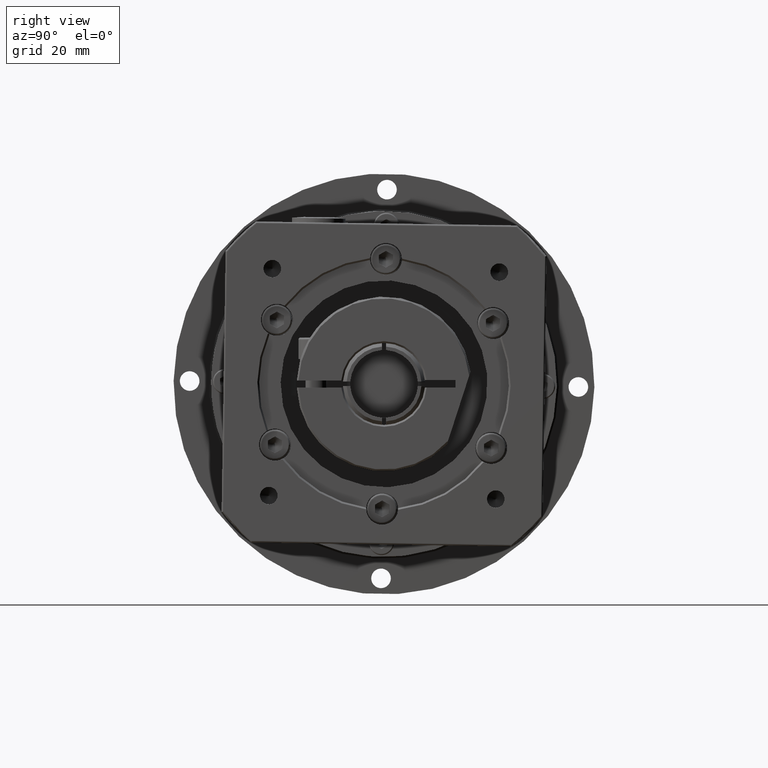
[diagram: clean part render]
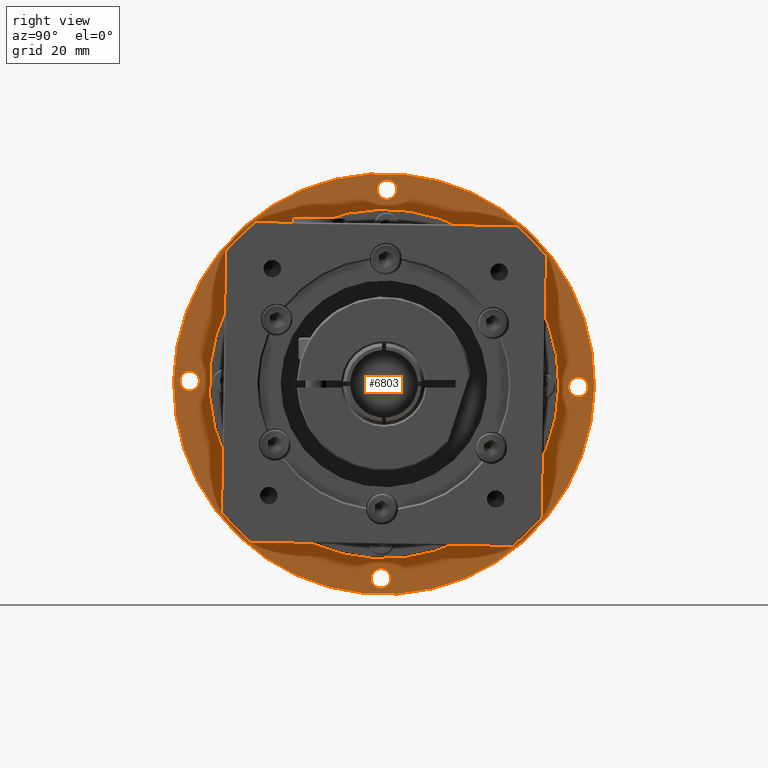
[diagram: same view with one face highlighted and labeled with its STEP entity id]
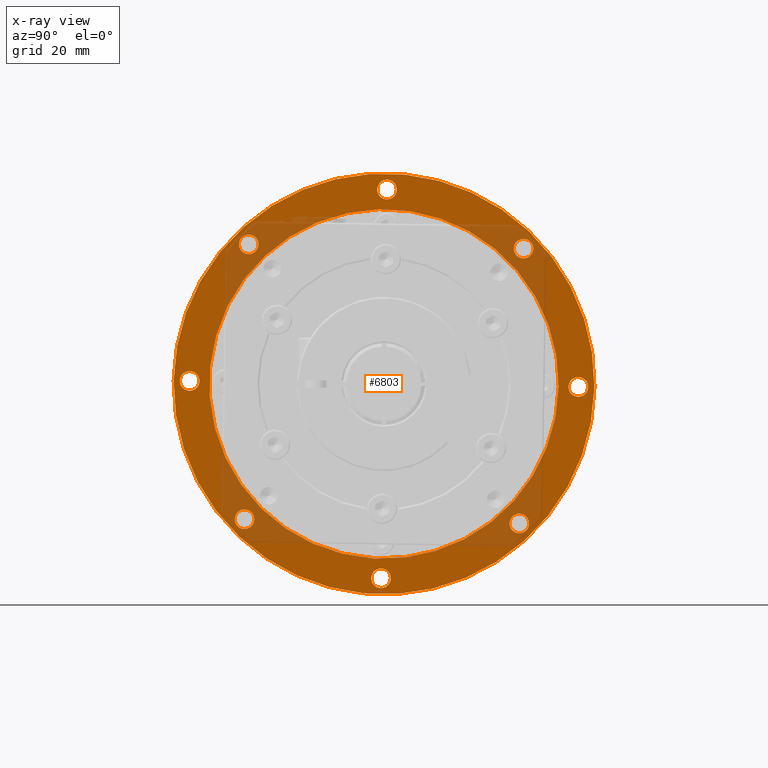
[diagram: x-ray of the same camera — body ghosted, the highlighted face saturated]
A machine part, right view. The second image highlights one B-rep face of the part: STEP entity #6803.
The next image is the same camera in x-ray: the body ghosted, the highlighted face saturated — about 24% of this face is hidden behind the body in this view.
In plain terms, the highlighted planar face has unit normal (1, 0, -0).
Its self-contained STEP definition (entity closure, byte-faithful):
#1019=PLANE('',#7541);
#1238=FACE_BOUND('',#2273,.T.);
#1239=FACE_BOUND('',#2274,.T.);
#1240=FACE_BOUND('',#2275,.T.);
#1241=FACE_BOUND('',#2276,.T.);
#1242=FACE_BOUND('',#2277,.T.);
#1243=FACE_BOUND('',#2278,.T.);
#1244=FACE_BOUND('',#2279,.T.);
#1245=FACE_BOUND('',#2280,.T.);
#1246=FACE_BOUND('',#2281,.T.);
#1665=FACE_OUTER_BOUND('',#2272,.T.);
#2272=EDGE_LOOP('',(#5486));
#2273=EDGE_LOOP('',(#5487));
#2274=EDGE_LOOP('',(#5488));
#2275=EDGE_LOOP('',(#5489));
#2276=EDGE_LOOP('',(#5490));
#2277=EDGE_LOOP('',(#5491));
#2278=EDGE_LOOP('',(#5492));
#2279=EDGE_LOOP('',(#5493));
#2280=EDGE_LOOP('',(#5494));
#2281=EDGE_LOOP('',(#5495));
#2850=CIRCLE('',#7540,49.);
#2851=CIRCLE('',#7542,59.);
#2852=CIRCLE('',#7543,2.75);
#2853=CIRCLE('',#7544,2.75);
#2854=CIRCLE('',#7545,2.75);
#2855=CIRCLE('',#7546,2.75);
#2856=CIRCLE('',#7547,2.75);
#2857=CIRCLE('',#7548,2.75);
#2858=CIRCLE('',#7549,2.75);
#2859=CIRCLE('',#7550,2.75);
#3388=VERTEX_POINT('',#11584);
#3389=VERTEX_POINT('',#11587);
#3390=VERTEX_POINT('',#11589);
#3391=VERTEX_POINT('',#11591);
#3392=VERTEX_POINT('',#11593);
#3393=VERTEX_POINT('',#11595);
#3394=VERTEX_POINT('',#11597);
#3395=VERTEX_POINT('',#11599);
#3396=VERTEX_POINT('',#11601);
#3397=VERTEX_POINT('',#11603);
#4151=EDGE_CURVE('',#3388,#3388,#2850,.T.);
#4152=EDGE_CURVE('',#3389,#3389,#2851,.T.);
#4153=EDGE_CURVE('',#3390,#3390,#2852,.T.);
#4154=EDGE_CURVE('',#3391,#3391,#2853,.T.);
#4155=EDGE_CURVE('',#3392,#3392,#2854,.T.);
#4156=EDGE_CURVE('',#3393,#3393,#2855,.T.);
#4157=EDGE_CURVE('',#3394,#3394,#2856,.T.);
#4158=EDGE_CURVE('',#3395,#3395,#2857,.T.);
#4159=EDGE_CURVE('',#3396,#3396,#2858,.T.);
#4160=EDGE_CURVE('',#3397,#3397,#2859,.T.);
#5486=ORIENTED_EDGE('',*,*,#4152,.T.);
#5487=ORIENTED_EDGE('',*,*,#4153,.T.);
#5488=ORIENTED_EDGE('',*,*,#4154,.T.);
#5489=ORIENTED_EDGE('',*,*,#4155,.T.);
#5490=ORIENTED_EDGE('',*,*,#4156,.T.);
#5491=ORIENTED_EDGE('',*,*,#4157,.T.);
#5492=ORIENTED_EDGE('',*,*,#4158,.T.);
#5493=ORIENTED_EDGE('',*,*,#4159,.T.);
#5494=ORIENTED_EDGE('',*,*,#4160,.T.);
#5495=ORIENTED_EDGE('',*,*,#4151,.F.);
#6803=ADVANCED_FACE('',(#1665,#1238,#1239,#1240,#1241,#1242,#1243,#1244,
#1245,#1246),#1019,.T.);
#7540=AXIS2_PLACEMENT_3D('',#11585,#9100,#9101);
#7541=AXIS2_PLACEMENT_3D('',#11586,#9102,#9103);
#7542=AXIS2_PLACEMENT_3D('',#11588,#9104,#9105);
#7543=AXIS2_PLACEMENT_3D('',#11590,#9106,#9107);
#7544=AXIS2_PLACEMENT_3D('',#11592,#9108,#9109);
#7545=AXIS2_PLACEMENT_3D('',#11594,#9110,#9111);
#7546=AXIS2_PLACEMENT_3D('',#11596,#9112,#9113);
#7547=AXIS2_PLACEMENT_3D('',#11598,#9114,#9115);
#7548=AXIS2_PLACEMENT_3D('',#11600,#9116,#9117);
#7549=AXIS2_PLACEMENT_3D('',#11602,#9118,#9119);
#7550=AXIS2_PLACEMENT_3D('',#11604,#9120,#9121);
#9100=DIRECTION('center_axis',(1.,5.0633159996887E-15,-5.29528915366341E-15));
#9101=DIRECTION('ref_axis',(-5.21713403870543E-15,-0.0153129377686141,-0.999882750094677));
#9102=DIRECTION('center_axis',(1.,5.0633159996887E-15,-5.29528915366341E-15));
#9103=DIRECTION('ref_axis',(-5.19584375524573E-15,-0.0153129377686142,-0.999882750094677));
#9104=DIRECTION('center_axis',(1.,5.0633159996887E-15,-5.29528915366341E-15));
#9105=DIRECTION('ref_axis',(-5.21713403870543E-15,-0.0153129377686141,-0.999882750094677));
#9106=DIRECTION('center_axis',(-1.,-5.0633159996887E-15,5.29528915366341E-15));
#9107=DIRECTION('ref_axis',(-2.50437571534531E-16,-0.717851755119475,-0.696195990847325));
#9108=DIRECTION('center_axis',(-1.,-5.0633159996887E-15,5.29528915366341E-15));
#9109=DIRECTION('ref_axis',(4.86296182851351E-15,-0.999882750094677,0.0153129377686143));
#9110=DIRECTION('center_axis',(-1.,-5.0633159996887E-15,5.29528915366341E-15));
#9111=DIRECTION('ref_axis',(7.127704142721E-15,-0.696195990847325,0.717851755119475));
#9112=DIRECTION('center_axis',(-1.,-5.0633159996887E-15,5.29528915366341E-15));
#9113=DIRECTION('ref_axis',(5.21713403870543E-15,0.0153129377686143,0.999882750094677));
#9114=DIRECTION('center_axis',(-1.,-5.0633159996887E-15,5.29528915366341E-15));
#9115=DIRECTION('ref_axis',(2.50437571534532E-16,0.717851755119475,0.696195990847326));
#9116=DIRECTION('center_axis',(-1.,-5.0633159996887E-15,5.29528915366341E-15));
#9117=DIRECTION('ref_axis',(-4.86296182851351E-15,0.999882750094677,-0.0153129377686141));
#9118=DIRECTION('center_axis',(-1.,-5.0633159996887E-15,5.29528915366341E-15));
#9119=DIRECTION('ref_axis',(-7.127704142721E-15,0.696195990847326,-0.717851755119475));
#9120=DIRECTION('center_axis',(-1.,-5.0633159996887E-15,5.29528915366341E-15));
#9121=DIRECTION('ref_axis',(-5.21713403870543E-15,-0.0153129377686141,-0.999882750094677));
#11584=CARTESIAN_POINT('',(3.28023839840119,-46.0777938031173,-12.1839198305402));
#11585=CARTESIAN_POINT('Origin',(3.28023839840144,-95.0720485577565,-11.4335858798782));
#11586=CARTESIAN_POINT('Origin',(3.28023839840119,-46.0777938031173,-12.1839198305402));
#11587=CARTESIAN_POINT('',(3.28023839840113,-36.0789663021705,-12.3370492082264));
#11588=CARTESIAN_POINT('Origin',(3.28023839840144,-95.0720485577565,-11.4335858798782));
#11589=CARTESIAN_POINT('',(3.28023839840104,-59.1034593831558,-52.4710455087197));
#11590=CARTESIAN_POINT('Origin',(3.28023839840104,-57.1293670565772,-50.5565065338895));
#11591=CARTESIAN_POINT('',(3.28023839840116,-98.6562812289063,-65.8850851811744));
#11592=CARTESIAN_POINT('Origin',(3.28023839840113,-95.9066036661459,-65.927195760038));
#11593=CARTESIAN_POINT('',(3.28023839840143,-136.109508186598,-47.4021750544788));
#11594=CARTESIAN_POINT('Origin',(3.28023839840139,-134.194969211768,-49.3762673810574));
#11595=CARTESIAN_POINT('',(3.28023839840171,-149.523547859053,-7.84935320872831));
#11596=CARTESIAN_POINT('Origin',(3.28023839840166,-149.565658437916,-10.5990307714887));
#11597=CARTESIAN_POINT('',(3.28023839840182,-131.040637732357,29.6038737489634));
#11598=CARTESIAN_POINT('Origin',(3.28023839840179,-133.014730058936,27.6893347741332));
#11599=CARTESIAN_POINT('',(3.2802383984017,-91.4878158866066,43.0179134214181));
#11600=CARTESIAN_POINT('Origin',(3.2802383984017,-94.237493449367,43.0600240002818));
#11601=CARTESIAN_POINT('',(3.28023839840142,-54.0345889289149,24.5350032947225));
#11602=CARTESIAN_POINT('Origin',(3.28023839840144,-55.9491279037451,26.5090956213011));
#11603=CARTESIAN_POINT('',(3.28023839840115,-40.6205492564602,-15.017818551028));
#11604=CARTESIAN_POINT('Origin',(3.28023839840116,-40.5784386775966,-12.2681409882676));